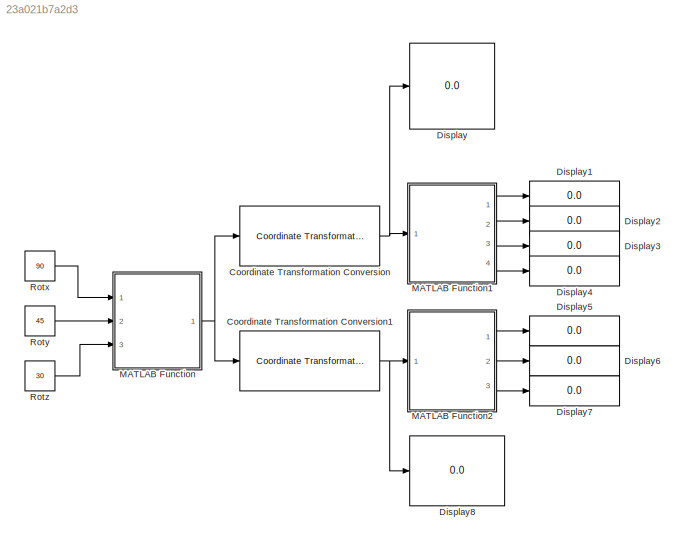
MODEL slx_23a021b7a2d3
KIND model
CONFIG AbsTol = auto
CONFIG EnableMultiTasking = off
CONFIG FixedStep = auto
CONFIG MaxStep = auto
CONFIG MinStep = auto
CONFIG RelTol = 1e-3
CONFIG SampleTimeConstraint = Unconstrained
CONFIG Solver = VariableStepAuto
CONFIG SolverName = VariableStepAuto
CONFIG StartTime = 0.0
CONFIG StopTime = 10.0
BLOCK [Reference] Coordinate Transformation Conversion  REF=robotcorelib/Coordinate Transformation Conversion
  Ports = [1, 1]
  SourceBlock = robotcorelib/Coordinate Transformation Conversion
  SourceProductBaseCode = RO
  SourceProductName = Robotics System Toolbox
  SourceType = robotics.slcore.internal.block.CoordinateTransformationConversion
BLOCK [Reference] Coordinate Transformation Conversion1  REF=robotcorelib/Coordinate Transformation Conversion
  Ports = [1, 1]
  SourceBlock = robotcorelib/Coordinate Transformation Conversion
  SourceProductBaseCode = RO
  SourceProductName = Robotics System Toolbox
  SourceType = robotics.slcore.internal.block.CoordinateTransformationConversion
BLOCK [Display] Display
  Decimation = 1
  Ports = [1]
BLOCK [Display] Display1
  Decimation = 1
  Ports = [1]
BLOCK [Display] Display2
  Decimation = 1
  Ports = [1]
BLOCK [Display] Display3
  Decimation = 1
  Ports = [1]
BLOCK [Display] Display4
  Decimation = 1
  Ports = [1]
BLOCK [Display] Display5
  Decimation = 1
  Ports = [1]
BLOCK [Display] Display6
  Decimation = 1
  Ports = [1]
BLOCK [Display] Display7
  Decimation = 1
  Ports = [1]
BLOCK [Display] Display8
  Decimation = 1
  Ports = [1]
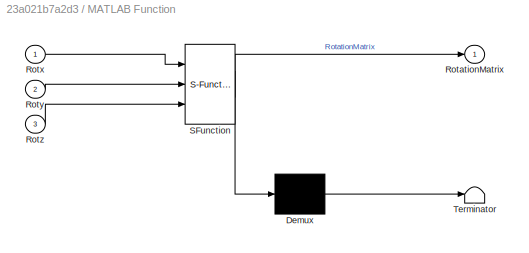
BLOCK [SubSystem] MATLAB Function
  ErrorFcn = Stateflow.Translate.translate
  PermitHierarchicalResolution = ExplicitOnly
  Ports = [3, 1]
  RequestExecContextInheritance = off
  SFBlockType = MATLAB Function
  TreatAsAtomicUnit = on
BLOCK [Demux] MATLAB Function/ Demux 
  Outputs = 1
  Ports = [1, 1]
BLOCK [S-Function] MATLAB Function/ SFunction 
  EnableBusSupport = on
  FunctionName = sf_sfun
  PortCounts = [3 2]
  Ports = [3, 2]
  SFcnIsStateOwnerBlock = off
  SFunctionDeploymentMode = off
  Tag = Stateflow S-Function Rot_to_Euler 2
BLOCK [Terminator] MATLAB Function/ Terminator 
BLOCK [Outport] MATLAB Function/RotationMatrix
  IconDisplay = Port number
BLOCK [Inport] MATLAB Function/Rotx
  IconDisplay = Port number
BLOCK [Inport] MATLAB Function/Roty
  IconDisplay = Port number
  Port = 2
BLOCK [Inport] MATLAB Function/Rotz
  IconDisplay = Port number
  Port = 3
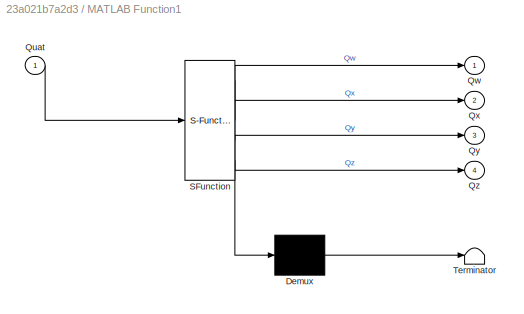
BLOCK [SubSystem] MATLAB Function1
  ErrorFcn = Stateflow.Translate.translate
  PermitHierarchicalResolution = ExplicitOnly
  Ports = [1, 4]
  RequestExecContextInheritance = off
  SFBlockType = MATLAB Function
  TreatAsAtomicUnit = on
BLOCK [Demux] MATLAB Function1/ Demux 
  Outputs = 1
  Ports = [1, 1]
BLOCK [S-Function] MATLAB Function1/ SFunction 
  EnableBusSupport = on
  FunctionName = sf_sfun
  PortCounts = [1 5]
  Ports = [1, 5]
  SFcnIsStateOwnerBlock = off
  SFunctionDeploymentMode = off
  Tag = Stateflow S-Function Rot_to_Euler 1
BLOCK [Terminator] MATLAB Function1/ Terminator 
BLOCK [Inport] MATLAB Function1/Quat
  IconDisplay = Port number
BLOCK [Outport] MATLAB Function1/Qw
  IconDisplay = Port number
BLOCK [Outport] MATLAB Function1/Qx
  IconDisplay = Port number
  Port = 2
BLOCK [Outport] MATLAB Function1/Qy
  IconDisplay = Port number
  Port = 3
BLOCK [Outport] MATLAB Function1/Qz
  IconDisplay = Port number
  Port = 4
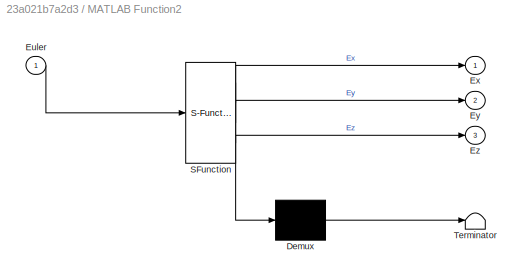
BLOCK [SubSystem] MATLAB Function2
  ErrorFcn = Stateflow.Translate.translate
  PermitHierarchicalResolution = ExplicitOnly
  Ports = [1, 3]
  RequestExecContextInheritance = off
  SFBlockType = MATLAB Function
  TreatAsAtomicUnit = on
BLOCK [Demux] MATLAB Function2/ Demux 
  Outputs = 1
  Ports = [1, 1]
BLOCK [S-Function] MATLAB Function2/ SFunction 
  EnableBusSupport = on
  FunctionName = sf_sfun
  PortCounts = [1 4]
  Ports = [1, 4]
  SFcnIsStateOwnerBlock = off
  SFunctionDeploymentMode = off
  Tag = Stateflow S-Function Rot_to_Euler 3
BLOCK [Terminator] MATLAB Function2/ Terminator 
BLOCK [Inport] MATLAB Function2/Euler
  IconDisplay = Port number
BLOCK [Outport] MATLAB Function2/Ex
  IconDisplay = Port number
BLOCK [Outport] MATLAB Function2/Ey
  IconDisplay = Port number
  Port = 2
BLOCK [Outport] MATLAB Function2/Ez
  IconDisplay = Port number
  Port = 3
BLOCK [Constant] Rotx
  Value = 90
BLOCK [Constant] Roty
  Value = 45
BLOCK [Constant] Rotz
  Value = 30
NET Coordinate Transformation Conversion1:1 -> Display8:1, MATLAB Function2:1
NET Coordinate Transformation Conversion:1 -> Display:1, MATLAB Function1:1
LINE MATLAB Function1:1 -> Display1:1
LINE MATLAB Function1:2 -> Display2:1
LINE MATLAB Function1:3 -> Display3:1
LINE MATLAB Function1:4 -> Display4:1
LINE MATLAB Function2:1 -> Display5:1
LINE MATLAB Function2:2 -> Display6:1
LINE MATLAB Function2:3 -> Display7:1
NET MATLAB Function:1 -> Coordinate Transformation Conversion1:1, Coordinate Transformation Conversion:1
LINE Rotx:1 -> MATLAB Function:1
LINE Roty:1 -> MATLAB Function:2
LINE Rotz:1 -> MATLAB Function:3
note: NET lines group one-source signal fan-out (src -> all destinations, sorted); 1:1 wires keep LINE
CHART MATLAB Function1 states=1 transitions=1
  STATE_LABEL 'eML_blk_kernel()'
  STATE_LABEL 'SCRIPT:\nfunction [Qw,Qx,Qy,Qz]= fcn(Quat)\n\nQw = Quat(1,1);\nQx = Quat(2,1);\nQy = Quat(3,1);\nQz = Quat(4,1);\n\n\n\n'
CHART MATLAB Function states=1 transitions=1
  STATE_LABEL 'eML_blk_kernel()'
  STATE_LABEL 'SCRIPT:\nfunction RotationMatrix = fcn(Rotx,Roty,Rotz)\n\nRx = [1,0,0; 0,cos(Rotx),-sin(Rotx); 0,sin(Rotx),cos(Rotx);];\nRy = [cos(Roty),0,sin(Roty); 0,1,0; -sin(Roty),0,cos(Roty);];\nRz = [cos(Rotz),-sin(Rotz),0; sin(Rotz),cos(Rotz),0; 0,0,1;];\n\n\n\nRotationMatrix = Rx*Ry*Rz;\n'
CHART MATLAB Function2 states=1 transitions=1
  STATE_LABEL 'eML_blk_kernel()'
  STATE_LABEL 'SCRIPT:\nfunction [Ex,Ey,Ez]= fcn(Euler)\n\nEx = Euler(1,1);\nEy = Euler(2,1);\nEz = Euler(3,1);\n\n\n\n'
